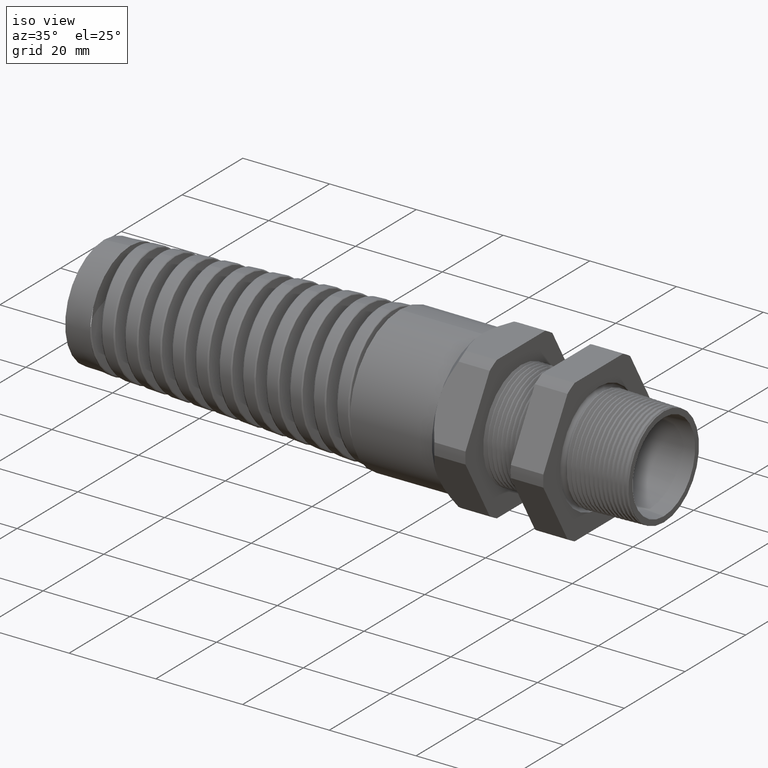
[diagram: clean part render]
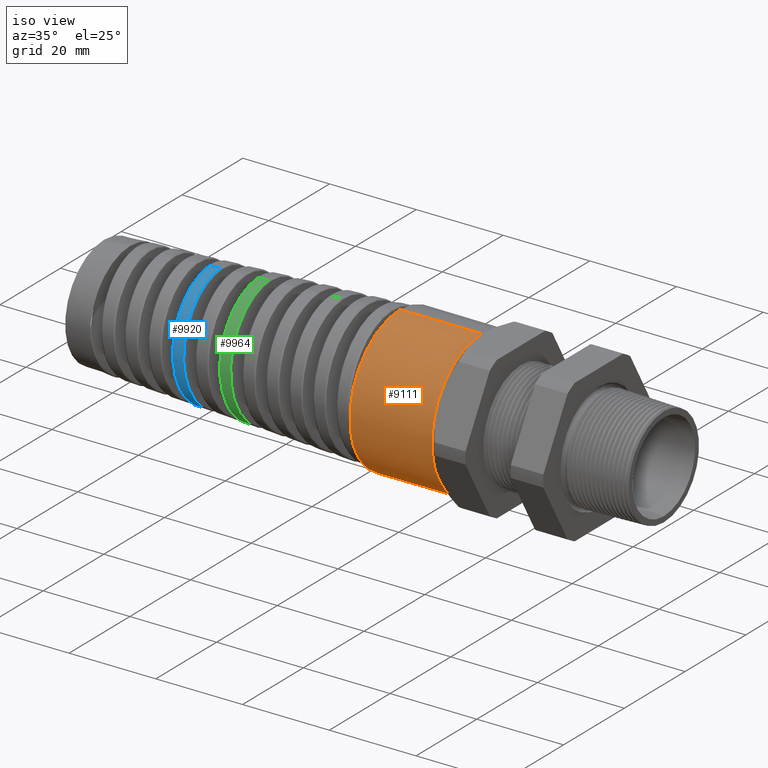
[diagram: same view with three faces highlighted in distinct colors, each labeled with its STEP entity id]
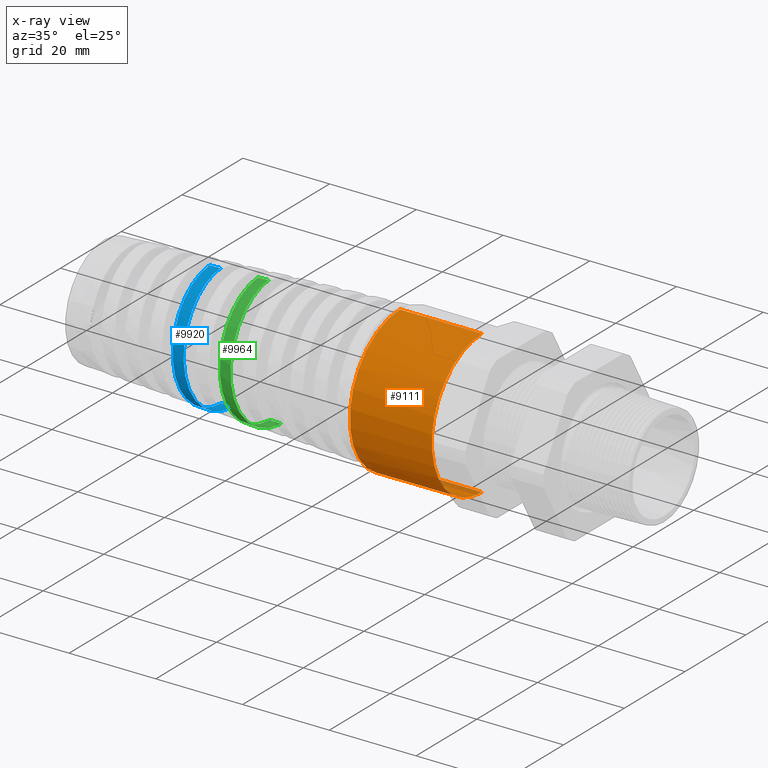
[diagram: x-ray of the same camera — body ghosted, the three highlighted faces saturated]
A machine part, iso view with three faces highlighted in distinct colors.
The next image is the same camera in x-ray (body ghosted, the three faces saturated) — at least one of them is partly hidden behind the body in this view.
Their STEP definitions:

[orange] entity #9111 — the highlighted cylindrical surface (partial cylindrical patch) has radius 16.51 mm, axis along (1, 0, 0).
#8967 = VERTEX_POINT ( 'NONE', #12542 ) ;
#8999 = VERTEX_POINT ( 'NONE', #12596 ) ;
#9093 = ORIENTED_EDGE ( 'NONE', *, *, #9094, .F. ) ;
#9094 = EDGE_CURVE ( 'NONE', #8999, #8967, #12826, .T. ) ;
#9095 = ORIENTED_EDGE ( 'NONE', *, *, #9096, .F. ) ;
#9096 = EDGE_CURVE ( 'NONE', #10481, #8999, #12821, .T. ) ;
#9111 = ADVANCED_FACE ( 'NONE', ( #12858 ), #12857, .T. ) ;
#9112 = EDGE_LOOP ( 'NONE', ( #9113, #9114, #9116, #9117, #9093, #9095 ) ) ;
#9113 = ORIENTED_EDGE ( 'NONE', *, *, #10480, .F. ) ;
#9114 = ORIENTED_EDGE ( 'NONE', *, *, #9115, .F. ) ;
#9115 = EDGE_CURVE ( 'NONE', #10478, #10477, #12851, .T. ) ;
#9116 = ORIENTED_EDGE ( 'NONE', *, *, #10463, .T. ) ;
#9117 = ORIENTED_EDGE ( 'NONE', *, *, #9118, .F. ) ;
#9118 = EDGE_CURVE ( 'NONE', #8967, #10461, #12847, .T. ) ;
#10461 = VERTEX_POINT ( 'NONE', #20010 ) ;
#10463 = EDGE_CURVE ( 'NONE', #10478, #10461, #20080, .T. ) ;
#10477 = VERTEX_POINT ( 'NONE', #20048 ) ;
#10478 = VERTEX_POINT ( 'NONE', #20047 ) ;
#10480 = EDGE_CURVE ( 'NONE', #10477, #10481, #19700, .T. ) ;
#10481 = VERTEX_POINT ( 'NONE', #20109 ) ;
#12542 = CARTESIAN_POINT ( 'NONE',  ( -1.370551181102362300, -0.5629165124598851700, -0.3250000000000002300 ) ) ;
#12596 = CARTESIAN_POINT ( 'NONE',  ( -1.370551181102362300, -0.5629165124598853900, 0.3249999999999999600 ) ) ;
#12817 = DIRECTION ( 'NONE',  ( 0.0000000000000000000, 0.0000000000000000000, -1.000000000000000000 ) ) ;
#12818 = DIRECTION ( 'NONE',  ( 1.000000000000000000, 0.0000000000000000000, 0.0000000000000000000 ) ) ;
#12819 = CARTESIAN_POINT ( 'NONE',  ( -1.370551181102362500, 0.0000000000000000000, 0.0000000000000000000 ) ) ;
#12820 = AXIS2_PLACEMENT_3D ( 'NONE', #12819, #12818, #12817 ) ;
#12821 = CIRCLE ( 'NONE', #12820, 0.6500000000000000200 ) ;
#12822 = DIRECTION ( 'NONE',  ( 0.0000000000000000000, 0.0000000000000000000, -1.000000000000000000 ) ) ;
#12823 = DIRECTION ( 'NONE',  ( 1.000000000000000000, 0.0000000000000000000, 0.0000000000000000000 ) ) ;
#12824 = CARTESIAN_POINT ( 'NONE',  ( -1.370551181102362500, 0.0000000000000000000, 0.0000000000000000000 ) ) ;
#12825 = AXIS2_PLACEMENT_3D ( 'NONE', #12824, #12823, #12822 ) ;
#12826 = CIRCLE ( 'NONE', #12825, 0.6500000000000000200 ) ;
#12843 = DIRECTION ( 'NONE',  ( 0.0000000000000000000, 0.0000000000000000000, -1.000000000000000000 ) ) ;
#12844 = DIRECTION ( 'NONE',  ( 1.000000000000000000, 0.0000000000000000000, 0.0000000000000000000 ) ) ;
#12845 = CARTESIAN_POINT ( 'NONE',  ( -1.370551181102362500, 0.0000000000000000000, 0.0000000000000000000 ) ) ;
#12846 = AXIS2_PLACEMENT_3D ( 'NONE', #12845, #12844, #12843 ) ;
#12847 = CIRCLE ( 'NONE', #12846, 0.6500000000000000200 ) ;
#12848 = DIRECTION ( 'NONE',  ( 0.0000000000000000000, 0.0000000000000000000, 1.000000000000000000 ) ) ;
#12849 = DIRECTION ( 'NONE',  ( -1.000000000000000000, 0.0000000000000000000, 0.0000000000000000000 ) ) ;
#12850 = AXIS2_PLACEMENT_3D ( 'NONE', #12856, #12849, #12848 ) ;
#12851 = CIRCLE ( 'NONE', #12850, 0.6500000000000000200 ) ;
#12852 = DIRECTION ( 'NONE',  ( 0.0000000000000000000, 0.0000000000000000000, -1.000000000000000000 ) ) ;
#12853 = DIRECTION ( 'NONE',  ( 1.000000000000000000, 0.0000000000000000000, 0.0000000000000000000 ) ) ;
#12854 = CARTESIAN_POINT ( 'NONE',  ( 1.326736918405036800, 0.0000000000000000000, 0.0000000000000000000 ) ) ;
#12855 = AXIS2_PLACEMENT_3D ( 'NONE', #12854, #12853, #12852 ) ;
#12856 = CARTESIAN_POINT ( 'NONE',  ( -2.115199598098571600, 0.0000000000000000000, 0.0000000000000000000 ) ) ;
#12857 = CYLINDRICAL_SURFACE ( 'NONE', #12855, 0.6500000000000000200 ) ;
#12858 = FACE_OUTER_BOUND ( 'NONE', #9112, .T. ) ;
#19700 = LINE ( 'NONE', #19702, #19737 ) ;
#19701 = DIRECTION ( 'NONE',  ( 1.000000000000000000, 0.0000000000000000000, 0.0000000000000000000 ) ) ;
#19702 = CARTESIAN_POINT ( 'NONE',  ( 1.326736918405036800, 7.960204194457796700E-017, 0.6500000000000000200 ) ) ;
#19737 = VECTOR ( 'NONE', #19701, 39.37007874015748100 ) ;
#20010 = CARTESIAN_POINT ( 'NONE',  ( -1.370551181102362300, 0.0000000000000000000, -0.6500000000000000200 ) ) ;
#20047 = CARTESIAN_POINT ( 'NONE',  ( -2.115199598098571600, 0.0000000000000000000, -0.6500000000000000200 ) ) ;
#20048 = CARTESIAN_POINT ( 'NONE',  ( -2.115199598098571600, 7.960204194457796700E-017, 0.6500000000000000200 ) ) ;
#20077 = DIRECTION ( 'NONE',  ( 1.000000000000000000, 0.0000000000000000000, 0.0000000000000000000 ) ) ;
#20078 = VECTOR ( 'NONE', #20077, 39.37007874015748100 ) ;
#20079 = CARTESIAN_POINT ( 'NONE',  ( 1.326736918405036800, 0.0000000000000000000, -0.6500000000000000200 ) ) ;
#20080 = LINE ( 'NONE', #20079, #20078 ) ;
#20109 = CARTESIAN_POINT ( 'NONE',  ( -1.370551181102362300, 0.0000000000000000000, 0.6500000000000000200 ) ) ;

[blue] entity #9920 — the highlighted conical surface has half-angle 2.5 deg.
#9863 = VERTEX_POINT ( 'NONE', #15163 ) ;
#9865 = EDGE_CURVE ( 'NONE', #9873, #9863, #15182, .T. ) ;
#9873 = VERTEX_POINT ( 'NONE', #15323 ) ;
#9920 = ADVANCED_FACE ( 'NONE', ( #15638 ), #15637, .T. ) ;
#9921 = EDGE_LOOP ( 'NONE', ( #9975, #9976, #9978, #9979 ) ) ;
#9975 = ORIENTED_EDGE ( 'NONE', *, *, #10277, .F. ) ;
#9976 = ORIENTED_EDGE ( 'NONE', *, *, #9977, .T. ) ;
#9977 = EDGE_CURVE ( 'NONE', #10275, #9873, #16307, .T. ) ;
#9978 = ORIENTED_EDGE ( 'NONE', *, *, #9865, .T. ) ;
#9979 = ORIENTED_EDGE ( 'NONE', *, *, #9980, .T. ) ;
#9980 = EDGE_CURVE ( 'NONE', #9863, #10278, #16335, .T. ) ;
#10275 = VERTEX_POINT ( 'NONE', #18535 ) ;
#10277 = EDGE_CURVE ( 'NONE', #10275, #10278, #18565, .T. ) ;
#10278 = VERTEX_POINT ( 'NONE', #18561 ) ;
#15163 = CARTESIAN_POINT ( 'NONE',  ( -3.633327764359772800, 6.087798419230420300E-013, -0.5581667265623990700 ) ) ;
#15179 = DIRECTION ( 'NONE',  ( 0.9990482215818576900, 0.0000000000000000000, -0.04361938736533626400 ) ) ;
#15180 = VECTOR ( 'NONE', #15179, 39.37007874015748100 ) ;
#15181 = CARTESIAN_POINT ( 'NONE',  ( -1.530000000000000200, 0.0000000000000000000, -0.6499999999999999100 ) ) ;
#15182 = LINE ( 'NONE', #15181, #15180 ) ;
#15323 = CARTESIAN_POINT ( 'NONE',  ( -3.735428313506644400, 1.418457782674449500E-015, -0.5537089203151697200 ) ) ;
#15633 = DIRECTION ( 'NONE',  ( 0.0000000000000000000, 0.0000000000000000000, -1.000000000000000000 ) ) ;
#15634 = DIRECTION ( 'NONE',  ( 1.000000000000000000, 0.0000000000000000000, 0.0000000000000000000 ) ) ;
#15635 = CARTESIAN_POINT ( 'NONE',  ( -1.530000000000000200, 0.0000000000000000000, 0.0000000000000000000 ) ) ;
#15636 = AXIS2_PLACEMENT_3D ( 'NONE', #15635, #15634, #15633 ) ;
#15637 = CONICAL_SURFACE ( 'NONE', #15636, 0.6499999999999999100, 0.04363323129985850100 ) ;
#15638 = FACE_OUTER_BOUND ( 'NONE', #9921, .T. ) ;
#16270 = CARTESIAN_POINT ( 'NONE',  ( -3.764036795854600400, -0.4024263849458568600, -0.3789361264680287100 ) ) ;
#16271 = CARTESIAN_POINT ( 'NONE',  ( -3.765194703821552300, -0.4147014891979020600, -0.3653836614453784300 ) ) ;
#16272 = CARTESIAN_POINT ( 'NONE',  ( -3.767485444692920900, -0.4376163782456989300, -0.3374373441936567300 ) ) ;
#16273 = CARTESIAN_POINT ( 'NONE',  ( -3.769763016962471200, -0.4590376492593963300, -0.3085225432027531300 ) ) ;
#16274 = CARTESIAN_POINT ( 'NONE',  ( -3.772040190895699800, -0.4775243498012218300, -0.2777068590145662100 ) ) ;
#16275 = CARTESIAN_POINT ( 'NONE',  ( -3.774329056577157000, -0.4945280431953412200, -0.2459314527179717300 ) ) ;
#16276 = CARTESIAN_POINT ( 'NONE',  ( -3.775483433498811900, -0.5023128376051977400, -0.2295040739212871100 ) ) ;
#16277 = CARTESIAN_POINT ( 'NONE',  ( -3.778953284140863700, -0.5231892313861040700, -0.1791291744344067300 ) ) ;
#16278 = CARTESIAN_POINT ( 'NONE',  ( -3.781235507285941400, -0.5336075231294501500, -0.1446985072618499300 ) ) ;
#16279 = CARTESIAN_POINT ( 'NONE',  ( -3.784661442643932000, -0.5441586356411498600, -0.09182633774336593200 ) ) ;
#16280 = CARTESIAN_POINT ( 'NONE',  ( -3.785804430105721000, -0.5468234349474184700, -0.07399646367209976300 ) ) ;
#16281 = CARTESIAN_POINT ( 'NONE',  ( -3.788106044755043600, -0.5504025579393880800, -0.03791486320502088200 ) ) ;
#16282 = CARTESIAN_POINT ( 'NONE',  ( -3.789263852555224200, -0.5513027336990418100, -0.01967600818574817900 ) ) ;
#16283 = CARTESIAN_POINT ( 'NONE',  ( -3.792703794437092000, -0.5513123662501979700, 0.03447011000485808400 ) ) ;
#16284 = CARTESIAN_POINT ( 'NONE',  ( -3.794979030589221900, -0.5478069671709883100, 0.07021382053498247100 ) ) ;
#16285 = CARTESIAN_POINT ( 'NONE',  ( -3.798429191220353800, -0.5372881831996158000, 0.1232954069569988100 ) ) ;
#16286 = CARTESIAN_POINT ( 'NONE',  ( -3.799591373271051800, -0.5328694342381539200, 0.1409909971055118600 ) ) ;
#16287 = CARTESIAN_POINT ( 'NONE',  ( -3.801904806971079700, -0.5223407107693454100, 0.1757190843129290100 ) ) ;
#16288 = CARTESIAN_POINT ( 'NONE',  ( -3.803051795439746900, -0.5162580999316783700, 0.1927001412097222600 ) ) ;
#16289 = CARTESIAN_POINT ( 'NONE',  ( -3.806481983892926500, -0.4956228874993334800, 0.2425246400725568400 ) ) ;
#16290 = CARTESIAN_POINT ( 'NONE',  ( -3.808755582773154300, -0.4787057518779014300, 0.2742600395190887300 ) ) ;
#16291 = CARTESIAN_POINT ( 'NONE',  ( -3.812224320051305500, -0.4484404838484493700, 0.3195663214175089600 ) ) ;
#16292 = CARTESIAN_POINT ( 'NONE',  ( -3.813383341598325100, -0.4375848799510591000, 0.3341862064976713900 ) ) ;
#16293 = CARTESIAN_POINT ( 'NONE',  ( -3.815683317109347600, -0.4146971073405975600, 0.3620452246488193300 ) ) ;
#16294 = CARTESIAN_POINT ( 'NONE',  ( -3.817975677220209400, -0.3905426642978325800, 0.3886613290339711000 ) ) ;
#16295 = CARTESIAN_POINT ( 'NONE',  ( -3.820271393623977400, -0.3638843709181285900, 0.4128188893686289300 ) ) ;
#16296 = CARTESIAN_POINT ( 'NONE',  ( -3.822576177442744700, -0.3359525047388657900, 0.4357252605044272800 ) ) ;
#16297 = CARTESIAN_POINT ( 'NONE',  ( -3.823739192518372100, -0.3212637131273469700, 0.4466051974987062000 ) ) ;
#16298 = CARTESIAN_POINT ( 'NONE',  ( -3.827199522645225100, -0.2760491704612608200, 0.4767404581132898000 ) ) ;
#16299 = CARTESIAN_POINT ( 'NONE',  ( -3.829475818732324100, -0.2443269419111491800, 0.4936222015291773500 ) ) ;
#16300 = CARTESIAN_POINT ( 'NONE',  ( -3.832920405164802300, -0.1944230078828167500, 0.5142192103555358600 ) ) ;
#16301 = CARTESIAN_POINT ( 'NONE',  ( -3.834073448236635900, -0.1773988464125280900, 0.5202917063925642800 ) ) ;
#16302 = CARTESIAN_POINT ( 'NONE',  ( -3.836400500195660700, -0.1425449844084268900, 0.5307947892549952400 ) ) ;
#16303 = CARTESIAN_POINT ( 'NONE',  ( -3.837558588607058700, -0.1249539384397218300, 0.5351505802367502200 ) ) ;
#16304 = CARTESIAN_POINT ( 'NONE',  ( -3.841014447858788600, -0.07194276508153774100, 0.5455556362618976300 ) ) ;
#16305 = CARTESIAN_POINT ( 'NONE',  ( -3.843296409137881800, -0.03618260755344817500, 0.5489992975502333600 ) ) ;
#16306 = CARTESIAN_POINT ( 'NONE',  ( -3.845603945865612600, 1.046813861233969200E-012, 0.5488985483208355100 ) ) ;
#16307 = B_SPLINE_CURVE_WITH_KNOTS ( 'NONE', 3,
 ( #16306, #16305, #16304, #16303, #16302, #16301, #16300, #16299, #16298, #16297, #16296, #16295, #16294, #16293, #16292, #16291, #16290, #16289, #16288, #16287, #16286, #16285, #16284, #16283, #16282, #16281, #16280, #16279, #16278, #16277, #16276, #16275, #16274, #16273, #16272, #16271, #16270, #16349, #16348, #16347, #16346, #16345, #16344, #16343, #16342, #16341, #16340, #16339, #16338, #16337 ),
 .UNSPECIFIED., .F., .F.,
 ( 4, 2, 2, 2, 2, 2, 1, 2, 2, 2, 2, 2, 2, 2, 2, 2, 2, 1, 2, 2, 2, 2, 2, 2, 2, 4 ),
 ( 0.2797453626345087200, 0.2825184206380514400, 0.2839049496398227700, 0.2852914786415941500, 0.2880645366451368700, 0.2894510656469082000, 0.2908375946486795300, 0.2922241236504509200, 0.2936106526522222500, 0.2963837106557649600, 0.2977702396575363500, 0.2991567686593076800, 0.3019298266628504000, 0.3033163556646217300, 0.3047028846663931100, 0.3074759426699358300, 0.3088624716717071600, 0.3102490006734785500, 0.3116355296752498800, 0.3130220586770212100, 0.3157951166805639300, 0.3171816456823352600, 0.3185681746841066400, 0.3213412326876493600, 0.3227277616894206900, 0.3241142906911920200 ),
 .UNSPECIFIED. ) ;
#16308 = CARTESIAN_POINT ( 'NONE',  ( -3.692711163062788200, -0.5513461426773915700, 0.07080449757934972900 ) ) ;
#16309 = CARTESIAN_POINT ( 'NONE',  ( -3.690409653241417200, -0.5549053835708807100, 0.03446050230631288900 ) ) ;
#16310 = CARTESIAN_POINT ( 'NONE',  ( -3.689249078842896900, -0.5557915578136007900, 0.01605426284739716300 ) ) ;
#16311 = CARTESIAN_POINT ( 'NONE',  ( -3.685806854939667400, -0.5557300957758010100, -0.03857174860767322700 ) ) ;
#16312 = CARTESIAN_POINT ( 'NONE',  ( -3.683543483175992300, -0.5521438475557477500, -0.07460258229145549900 ) ) ;
#16313 = CARTESIAN_POINT ( 'NONE',  ( -3.680122123952315900, -0.5414815590907430300, -0.1280682381592736200 ) ) ;
#16314 = CARTESIAN_POINT ( 'NONE',  ( -3.678971958072782700, -0.5370166941760363700, -0.1458689721701345900 ) ) ;
#16315 = CARTESIAN_POINT ( 'NONE',  ( -3.676672481442142100, -0.5263546069961062600, -0.1809066095160112300 ) ) ;
#16316 = CARTESIAN_POINT ( 'NONE',  ( -3.675530610907831200, -0.5202005849234350200, -0.1980315979040673000 ) ) ;
#16317 = CARTESIAN_POINT ( 'NONE',  ( -3.672111073953048300, -0.4993440242737360900, -0.2482595172045053100 ) ) ;
#16318 = CARTESIAN_POINT ( 'NONE',  ( -3.669838754237521700, -0.4822696765447651600, -0.2802262223207864800 ) ) ;
#16319 = CARTESIAN_POINT ( 'NONE',  ( -3.666389087920400900, -0.4517809053363715500, -0.3258361558729678800 ) ) ;
#16320 = CARTESIAN_POINT ( 'NONE',  ( -3.665235948156913400, -0.4408138889730579500, -0.3406034911913022900 ) ) ;
#16321 = CARTESIAN_POINT ( 'NONE',  ( -3.662955058546250700, -0.4177219486382371900, -0.3687097773890910000 ) ) ;
#16322 = CARTESIAN_POINT ( 'NONE',  ( -3.660686853602290700, -0.3933653138135835300, -0.3955544738158771600 ) ) ;
#16323 = CARTESIAN_POINT ( 'NONE',  ( -3.658417803427549000, -0.3665164188884788000, -0.4199107275566868500 ) ) ;
#16324 = CARTESIAN_POINT ( 'NONE',  ( -3.656136156542610900, -0.3384041400655156700, -0.4430044491269428100 ) ) ;
#16325 = CARTESIAN_POINT ( 'NONE',  ( -3.654982715111794600, -0.3236313733059101300, -0.4539741429703179100 ) ) ;
#16326 = CARTESIAN_POINT ( 'NONE',  ( -3.651537853184426000, -0.2780326645871235600, -0.4844564626574354200 ) ) ;
#16327 = CARTESIAN_POINT ( 'NONE',  ( -3.649268545211066700, -0.2460712398872702000, -0.5015349439735192800 ) ) ;
#16328 = CARTESIAN_POINT ( 'NONE',  ( -3.645857128704463400, -0.1958476676417998900, -0.5224098819246656400 ) ) ;
#16329 = CARTESIAN_POINT ( 'NONE',  ( -3.644719014755906100, -0.1787235091104260000, -0.5285720983982885600 ) ) ;
#16330 = CARTESIAN_POINT ( 'NONE',  ( -3.642426707779665500, -0.1436866747293286100, -0.5392553507532438200 ) ) ;
#16331 = CARTESIAN_POINT ( 'NONE',  ( -3.641280547147175600, -0.1258945910570941900, -0.5437309458471876200 ) ) ;
#16332 = CARTESIAN_POINT ( 'NONE',  ( -3.637869510012808700, -0.07244248733184097100, -0.5544381226043096900 ) ) ;
#16333 = CARTESIAN_POINT ( 'NONE',  ( -3.635612245094285400, -0.03641655398244927200, -0.5580669839795138200 ) ) ;
#16334 = CARTESIAN_POINT ( 'NONE',  ( -3.633327764359772800, 6.087798419230420300E-013, -0.5581667265623990700 ) ) ;
#16335 = B_SPLINE_CURVE_WITH_KNOTS ( 'NONE', 3,
 ( #16334, #16333, #16332, #16331, #16330, #16329, #16328, #16327, #16326, #16325, #16324, #16323, #16322, #16321, #16320, #16319, #16318, #16317, #16316, #16315, #16314, #16313, #16312, #16311, #16310, #16309, #16308, #16385, #16384, #16383, #16382, #16381, #16380, #16379, #16378, #16377, #16376, #16375, #16374, #16373, #16372, #16371, #16370, #16369, #16368, #16367, #16366, #16365, #16364 ),
 .UNSPECIFIED., .F., .F.,
 ( 4, 2, 2, 2, 2, 2, 1, 2, 2, 2, 2, 2, 2, 2, 2, 2, 2, 2, 2, 2, 2, 2, 2, 2, 4 ),
 ( 0.6544047487912670900, 0.6572056569766503400, 0.6586061110693419700, 0.6600065651620337100, 0.6628074733474169600, 0.6642079274401085900, 0.6656083815328002200, 0.6670088356254918500, 0.6684092897181834700, 0.6712101979035668400, 0.6726106519962584700, 0.6740111060889501000, 0.6768120142743333500, 0.6782124683670249800, 0.6796129224597166100, 0.6824138306450999700, 0.6852147388304832300, 0.6866151929231748600, 0.6880156470158664800, 0.6908165552012497400, 0.6922170092939413700, 0.6936174633866331000, 0.6964183715720163600, 0.6978188256647079900, 0.6992192797573996100 ),
 .UNSPECIFIED. ) ;
#16337 = CARTESIAN_POINT ( 'NONE',  ( -3.735428313506644400, 1.418457782674449500E-015, -0.5537089203151697200 ) ) ;
#16338 = CARTESIAN_POINT ( 'NONE',  ( -3.736566388436113800, -0.01796019790949942100, -0.5536592308906482800 ) ) ;
#16339 = CARTESIAN_POINT ( 'NONE',  ( -3.737706747492669300, -0.03593526832335221900, -0.5527377193069900100 ) ) ;
#16340 = CARTESIAN_POINT ( 'NONE',  ( -3.740001855236662700, -0.07191514506518254000, -0.5491152895351186800 ) ) ;
#16341 = CARTESIAN_POINT ( 'NONE',  ( -3.741161866676281400, -0.09000024012832004400, -0.5463914560888129000 ) ) ;
#16342 = CARTESIAN_POINT ( 'NONE',  ( -3.744605230060731800, -0.1432034684228009100, -0.5356788356679920100 ) ) ;
#16343 = CARTESIAN_POINT ( 'NONE',  ( -3.746866507668958200, -0.1775589641770421700, -0.5251764556753434300 ) ) ;
#16344 = CARTESIAN_POINT ( 'NONE',  ( -3.750285101356109200, -0.2274399413533692000, -0.5044510920306141100 ) ) ;
#16345 = CARTESIAN_POINT ( 'NONE',  ( -3.751430035436785500, -0.2438030288132126100, -0.4967010584334168900 ) ) ;
#16346 = CARTESIAN_POINT ( 'NONE',  ( -3.753737813332528500, -0.2758987326567299300, -0.4795000682119835400 ) ) ;
#16347 = CARTESIAN_POINT ( 'NONE',  ( -3.754883375701698200, -0.2913906433964887900, -0.4701798131660440100 ) ) ;
#16348 = CARTESIAN_POINT ( 'NONE',  ( -3.758312158273860800, -0.3362539211171550200, -0.4401331473809266800 ) ) ;
#16349 = CARTESIAN_POINT ( 'NONE',  ( -3.760588281698384000, -0.3640277599823666400, -0.4173402216586837300 ) ) ;
#16364 = CARTESIAN_POINT ( 'NONE',  ( -3.743151543843841600, 2.292153263157246400E-015, 0.5533717167963480000 ) ) ;
#16365 = CARTESIAN_POINT ( 'NONE',  ( -3.742008642997511900, -0.01810389563496027000, 0.5534216169249499600 ) ) ;
#16366 = CARTESIAN_POINT ( 'NONE',  ( -3.740866779689641300, -0.03621560674647774500, 0.5525852155201020900 ) ) ;
#16367 = CARTESIAN_POINT ( 'NONE',  ( -3.738571622500317800, -0.07245405102762531000, 0.5491114062356825500 ) ) ;
#16368 = CARTESIAN_POINT ( 'NONE',  ( -3.737411816088019600, -0.09068161187769106800, 0.5464505606204102000 ) ) ;
#16369 = CARTESIAN_POINT ( 'NONE',  ( -3.733955020068846500, -0.1444488209819628800, 0.5358489883879730100 ) ) ;
#16370 = CARTESIAN_POINT ( 'NONE',  ( -3.731677089651719300, -0.1791277434757102300, 0.5253610386341027700 ) ) ;
#16371 = CARTESIAN_POINT ( 'NONE',  ( -3.728236398516879400, -0.2294311718262263300, 0.5046104832535189800 ) ) ;
#16372 = CARTESIAN_POINT ( 'NONE',  ( -3.727085798178555000, -0.2459111291882006800, 0.4968512064638875300 ) ) ;
#16373 = CARTESIAN_POINT ( 'NONE',  ( -3.724769039356788300, -0.2782756323643176300, 0.4795916789992477100 ) ) ;
#16374 = CARTESIAN_POINT ( 'NONE',  ( -3.723617164500658800, -0.2939670875308116300, 0.4701893158244172000 ) ) ;
#16375 = CARTESIAN_POINT ( 'NONE',  ( -3.720185820380879100, -0.3392706805673315100, 0.4399378518888867300 ) ) ;
#16376 = CARTESIAN_POINT ( 'NONE',  ( -3.717918975505586600, -0.3672811792591926800, 0.4169827972466108000 ) ) ;
#16377 = CARTESIAN_POINT ( 'NONE',  ( -3.714473035726497200, -0.4059681819375802200, 0.3783249801736525700 ) ) ;
#16378 = CARTESIAN_POINT ( 'NONE',  ( -3.713311738596676700, -0.4183511848860411700, 0.3646623831811695000 ) ) ;
#16379 = CARTESIAN_POINT ( 'NONE',  ( -3.711010517546821300, -0.4414763409827764400, 0.3364617039368020300 ) ) ;
#16380 = CARTESIAN_POINT ( 'NONE',  ( -3.709865924125045600, -0.4522767765322474000, 0.3218763454530627600 ) ) ;
#16381 = CARTESIAN_POINT ( 'NONE',  ( -3.706436452743096000, -0.4824391814666059200, 0.2766964617666766700 ) ) ;
#16382 = CARTESIAN_POINT ( 'NONE',  ( -3.704155922103531000, -0.4996089727289549900, 0.2446319580930432500 ) ) ;
#16383 = CARTESIAN_POINT ( 'NONE',  ( -3.699542367209953200, -0.5276503744843951100, 0.1768125082141040500 ) ) ;
#16384 = CARTESIAN_POINT ( 'NONE',  ( -3.697274099646796300, -0.5381158535068367700, 0.1420731373702002200 ) ) ;
#16385 = CARTESIAN_POINT ( 'NONE',  ( -3.693853939705871200, -0.5486844882143828700, 0.08877180202762866000 ) ) ;
#18535 = CARTESIAN_POINT ( 'NONE',  ( -3.845603945865612600, 1.046813861233969200E-012, 0.5488985483208355100 ) ) ;
#18561 = CARTESIAN_POINT ( 'NONE',  ( -3.743151543843841600, 2.292153263157246400E-015, 0.5533717167963480000 ) ) ;
#18562 = DIRECTION ( 'NONE',  ( 0.9990482215818576900, 5.341834311772755600E-018, 0.04361938736533626400 ) ) ;
#18563 = VECTOR ( 'NONE', #18562, 39.37007874015748100 ) ;
#18564 = CARTESIAN_POINT ( 'NONE',  ( -1.530000000000000200, 7.960204194457794200E-017, 0.6499999999999999100 ) ) ;
#18565 = LINE ( 'NONE', #18564, #18563 ) ;

[green] entity #9964 — the highlighted conical surface has half-angle 2.5 deg.
#9844 = VERTEX_POINT ( 'NONE', #15041 ) ;
#9846 = EDGE_CURVE ( 'NONE', #9844, #9847, #15040, .T. ) ;
#9847 = VERTEX_POINT ( 'NONE', #15036 ) ;
#9857 = VERTEX_POINT ( 'NONE', #15134 ) ;
#9917 = VERTEX_POINT ( 'NONE', #15643 ) ;
#9919 = EDGE_CURVE ( 'NONE', #9857, #9917, #15642, .T. ) ;
#9964 = ADVANCED_FACE ( 'NONE', ( #16134 ), #16132, .T. ) ;
#9965 = EDGE_LOOP ( 'NONE', ( #9966, #9967, #9969, #9970 ) ) ;
#9966 = ORIENTED_EDGE ( 'NONE', *, *, #9846, .F. ) ;
#9967 = ORIENTED_EDGE ( 'NONE', *, *, #9968, .T. ) ;
#9968 = EDGE_CURVE ( 'NONE', #9844, #9857, #16158, .T. ) ;
#9969 = ORIENTED_EDGE ( 'NONE', *, *, #9919, .T. ) ;
#9970 = ORIENTED_EDGE ( 'NONE', *, *, #9971, .T. ) ;
#9971 = EDGE_CURVE ( 'NONE', #9917, #9847, #16185, .T. ) ;
#15036 = CARTESIAN_POINT ( 'NONE',  ( -3.303831899933475500, 3.512581403353681900E-016, 0.5725528266877064600 ) ) ;
#15037 = DIRECTION ( 'NONE',  ( 0.9990482215818576900, 5.341834311772755600E-018, 0.04361938736533626400 ) ) ;
#15038 = VECTOR ( 'NONE', #15037, 39.37007874015748100 ) ;
#15039 = CARTESIAN_POINT ( 'NONE',  ( -1.530000000000000200, 7.960204194457794200E-017, 0.6499999999999999100 ) ) ;
#15040 = LINE ( 'NONE', #15039, #15038 ) ;
#15041 = CARTESIAN_POINT ( 'NONE',  ( -3.404924743614887700, 6.227076600169196600E-013, 0.5681390178112731800 ) ) ;
#15134 = CARTESIAN_POINT ( 'NONE',  ( -3.294765793735067800, 3.237012489142617100E-015, -0.5729486614328376200 ) ) ;
#15639 = DIRECTION ( 'NONE',  ( 0.9990482215818576900, 0.0000000000000000000, -0.04361938736533626400 ) ) ;
#15640 = VECTOR ( 'NONE', #15639, 39.37007874015748100 ) ;
#15641 = CARTESIAN_POINT ( 'NONE',  ( -1.530000000000000200, 0.0000000000000000000, -0.6499999999999999100 ) ) ;
#15642 = LINE ( 'NONE', #15641, #15640 ) ;
#15643 = CARTESIAN_POINT ( 'NONE',  ( -3.193992204935517600, 2.317044770717647200E-016, -0.5773485313401007800 ) ) ;
#16132 = CONICAL_SURFACE ( 'NONE', #16162, 0.6499999999999999100, 0.04363323129985850100 ) ;
#16134 = FACE_OUTER_BOUND ( 'NONE', #9965, .T. ) ;
#16144 = CARTESIAN_POINT ( 'NONE',  ( -3.376165766005204500, -0.4166217232325053500, 0.3885657145896043200 ) ) ;
#16145 = CARTESIAN_POINT ( 'NONE',  ( -3.379600015432867800, -0.3771017340666844600, 0.4280427641914268900 ) ) ;
#16146 = CARTESIAN_POINT ( 'NONE',  ( -3.381878012048061600, -0.3483525346193888600, 0.4516461147990590300 ) ) ;
#16147 = CARTESIAN_POINT ( 'NONE',  ( -3.385349294161800000, -0.3015456910383803600, 0.4828828749802424000 ) ) ;
#16148 = CARTESIAN_POINT ( 'NONE',  ( -3.386515417686044100, -0.2853171965138623900, 0.4925840905037753800 ) ) ;
#16149 = CARTESIAN_POINT ( 'NONE',  ( -3.388823542523978500, -0.2523367683471239900, 0.5101533926449632900 ) ) ;
#16150 = CARTESIAN_POINT ( 'NONE',  ( -3.389972072196216800, -0.2354982285563161600, 0.5180832033544567900 ) ) ;
#16151 = CARTESIAN_POINT ( 'NONE',  ( -3.392265366047617200, -0.2011357063750846800, 0.5322594814827948900 ) ) ;
#16152 = CARTESIAN_POINT ( 'NONE',  ( -3.393409860817984100, -0.1836117063388426300, 0.5385059498308262200 ) ) ;
#16153 = CARTESIAN_POINT ( 'NONE',  ( -3.395708695371047400, -0.1478698119521200400, 0.5492925424221540800 ) ) ;
#16154 = CARTESIAN_POINT ( 'NONE',  ( -3.396868953983364300, -0.1295559150545920200, 0.5538499645734571400 ) ) ;
#16155 = CARTESIAN_POINT ( 'NONE',  ( -3.400339529643474600, -0.07426496322027378900, 0.5647170602027920000 ) ) ;
#16156 = CARTESIAN_POINT ( 'NONE',  ( -3.402623886964605000, -0.03722052731169495800, 0.5682394753821629100 ) ) ;
#16157 = CARTESIAN_POINT ( 'NONE',  ( -3.404924743614887700, 6.227076600169196600E-013, 0.5681390178112731800 ) ) ;
#16158 = B_SPLINE_CURVE_WITH_KNOTS ( 'NONE', 3,
 ( #16157, #16156, #16155, #16154, #16153, #16152, #16151, #16150, #16149, #16148, #16147, #16146, #16145, #16144, #16221, #16220, #16219, #16218, #16217, #16216, #16215, #16214, #16213, #16212, #16211, #16210, #16209, #16208, #16207, #16206, #16205, #16204, #16203, #16202, #16201, #16200, #16199, #16198, #16197, #16196, #16195, #16194, #16193, #16192, #16191, #16190, #16189, #16188, #16187 ),
 .UNSPECIFIED., .F., .F.,
 ( 4, 2, 2, 2, 2, 2, 2, 2, 2, 2, 2, 2, 2, 2, 2, 2, 2, 2, 2, 2, 2, 1, 2, 2, 4 ),
 ( 0.4595469966570271400, 0.4624176207210565200, 0.4638529327530712100, 0.4652882447850859000, 0.4667235568171006500, 0.4681588688491153400, 0.4710294929131447200, 0.4724648049451594100, 0.4739001169771741000, 0.4767707410412034800, 0.4782060530732181700, 0.4796413651052328600, 0.4825119891692622500, 0.4853826132332916800, 0.4868179252653063200, 0.4882532372973210600, 0.4911238613613504400, 0.4925591733933651400, 0.4939944854253798300, 0.4968651094894092100, 0.4983004215214239000, 0.4997357335534385900, 0.5011710455854532200, 0.5026063576174679700, 0.5054769816814973500 ),
 .UNSPECIFIED. ) ;
#16159 = DIRECTION ( 'NONE',  ( 0.0000000000000000000, 0.0000000000000000000, -1.000000000000000000 ) ) ;
#16160 = DIRECTION ( 'NONE',  ( 1.000000000000000000, 0.0000000000000000000, 0.0000000000000000000 ) ) ;
#16161 = CARTESIAN_POINT ( 'NONE',  ( -1.530000000000000200, 0.0000000000000000000, 0.0000000000000000000 ) ) ;
#16162 = AXIS2_PLACEMENT_3D ( 'NONE', #16161, #16160, #16159 ) ;
#16180 = CARTESIAN_POINT ( 'NONE',  ( -3.199676670528690500, -0.09354863330063506500, -0.5697835999192827300 ) ) ;
#16181 = CARTESIAN_POINT ( 'NONE',  ( -3.198530107317532500, -0.07482918174496440400, -0.5725872143093476700 ) ) ;
#16182 = CARTESIAN_POINT ( 'NONE',  ( -3.196255676934050900, -0.03744369303717511000, -0.5763402906023922200 ) ) ;
#16183 = CARTESIAN_POINT ( 'NONE',  ( -3.195124326861542100, -0.01873135440165500300, -0.5772991018293233100 ) ) ;
#16184 = CARTESIAN_POINT ( 'NONE',  ( -3.193992204935517600, 2.317044770717647200E-016, -0.5773485313401007800 ) ) ;
#16185 = B_SPLINE_CURVE_WITH_KNOTS ( 'NONE', 3,
 ( #16184, #16183, #16182, #16181, #16180, #16269, #16268, #16267, #16266, #16265, #16264, #16263, #16262, #16261, #16260, #16259, #16258, #16257, #16256, #16255, #16254, #16253, #16252, #16251, #16250, #16249, #16248, #16247, #16246, #16245, #16244, #16243, #16242, #16241, #16240, #16239, #16238, #16237, #16236, #16235, #16234, #16233, #16232, #16231, #16230, #16229, #16228, #16227, #16226 ),
 .UNSPECIFIED., .F., .F.,
 ( 4, 2, 2, 2, 2, 2, 2, 2, 2, 2, 2, 1, 2, 2, 2, 2, 2, 2, 2, 2, 2, 2, 2, 2, 4 ),
 ( 0.4713105514898361900, 0.4727596624682617300, 0.4742087734466872700, 0.4771069954035382900, 0.4785561063819638300, 0.4800052173603893700, 0.4829034393172403900, 0.4843525502956659300, 0.4858016612740914700, 0.4886998832309424900, 0.4901489942093680300, 0.4915981051877935700, 0.4930472161662190500, 0.4944963271446445900, 0.4973945491014956600, 0.4988436600799212000, 0.5002927710583466900, 0.5031909930151977600, 0.5046401039936232500, 0.5060892149720488400, 0.5089874369288998100, 0.5118856588857508800, 0.5133347698641764800, 0.5147838808426019600, 0.5176821027994530400 ),
 .UNSPECIFIED. ) ;
#16187 = CARTESIAN_POINT ( 'NONE',  ( -3.294765793735067800, 3.237012489142617100E-015, -0.5729486614328376200 ) ) ;
#16188 = CARTESIAN_POINT ( 'NONE',  ( -3.297042169390556500, -0.03721755646004110800, -0.5728492727253052800 ) ) ;
#16189 = CARTESIAN_POINT ( 'NONE',  ( -3.299302934690427700, -0.07424431991764356100, -0.5691588081825049700 ) ) ;
#16190 = CARTESIAN_POINT ( 'NONE',  ( -3.302749034369693200, -0.1294852792708896800, -0.5580834460965886600 ) ) ;
#16191 = CARTESIAN_POINT ( 'NONE',  ( -3.303903212449935900, -0.1477863616867261500, -0.5534626291644481100 ) ) ;
#16192 = CARTESIAN_POINT ( 'NONE',  ( -3.306191503648907100, -0.1834977059221450900, -0.5425641775886173000 ) ) ;
#16193 = CARTESIAN_POINT ( 'NONE',  ( -3.308471737497523900, -0.2185118921833067400, -0.5299734764228091200 ) ) ;
#16194 = CARTESIAN_POINT ( 'NONE',  ( -3.310755047317984100, -0.2521490213563017900, -0.5140432396570178100 ) ) ;
#16195 = CARTESIAN_POINT ( 'NONE',  ( -3.313047591574243900, -0.2850866285692556000, -0.4964178149571513200 ) ) ;
#16196 = CARTESIAN_POINT ( 'NONE',  ( -3.314204158692042800, -0.3012913350014493900, -0.4866970751149641300 ) ) ;
#16197 = CARTESIAN_POINT ( 'NONE',  ( -3.317650871864211500, -0.3480775417051929500, -0.4553864291293366300 ) ) ;
#16198 = CARTESIAN_POINT ( 'NONE',  ( -3.319914997831511400, -0.3768102453061366600, -0.4317559491617142300 ) ) ;
#16199 = CARTESIAN_POINT ( 'NONE',  ( -3.323337713844747300, -0.4163045047094539600, -0.3922745338821314600 ) ) ;
#16200 = CARTESIAN_POINT ( 'NONE',  ( -3.324482866016269500, -0.4288642164979831800, -0.3784366781494513700 ) ) ;
#16201 = CARTESIAN_POINT ( 'NONE',  ( -3.326793115683922300, -0.4527345814897080200, -0.3493635959889933600 ) ) ;
#16202 = CARTESIAN_POINT ( 'NONE',  ( -3.327948904701377100, -0.4639423758038093700, -0.3342415922120174900 ) ) ;
#16203 = CARTESIAN_POINT ( 'NONE',  ( -3.331389657975853500, -0.4950272606246998200, -0.2877150508244910600 ) ) ;
#16204 = CARTESIAN_POINT ( 'NONE',  ( -3.333662202432120300, -0.5125723758514004700, -0.2549417408579675600 ) ) ;
#16205 = CARTESIAN_POINT ( 'NONE',  ( -3.337100905093493000, -0.5340818037245688200, -0.2031300614205606700 ) ) ;
#16206 = CARTESIAN_POINT ( 'NONE',  ( -3.338259103306174600, -0.5404687977400076700, -0.1853169677752784200 ) ) ;
#16207 = CARTESIAN_POINT ( 'NONE',  ( -3.340557052943103700, -0.5513592377900631300, -0.1494567270900581700 ) ) ;
#16208 = CARTESIAN_POINT ( 'NONE',  ( -3.341699526215758300, -0.5558896134741516700, -0.1313723442608180900 ) ) ;
#16209 = CARTESIAN_POINT ( 'NONE',  ( -3.345125668359338400, -0.5667983558211793200, -0.07666800145976422600 ) ) ;
#16210 = CARTESIAN_POINT ( 'NONE',  ( -3.347408627080808800, -0.5705205085795289600, -0.03960128402536379500 ) ) ;
#16211 = CARTESIAN_POINT ( 'NONE',  ( -3.352050068203052700, -0.5705708643001653500, 0.03577091130535391800 ) ) ;
#16212 = CARTESIAN_POINT ( 'NONE',  ( -3.354330741054125200, -0.5668913542737537000, 0.07289411114997236500 ) ) ;
#16213 = CARTESIAN_POINT ( 'NONE',  ( -3.357754236501576000, -0.5560479780098255300, 0.1276034305479357400 ) ) ;
#16214 = CARTESIAN_POINT ( 'NONE',  ( -3.358896762526275600, -0.5515395815412758000, 0.1456853263282064400 ) ) ;
#16215 = CARTESIAN_POINT ( 'NONE',  ( -3.361197558220581100, -0.5406954550059974700, 0.1815323962287168100 ) ) ;
#16216 = CARTESIAN_POINT ( 'NONE',  ( -3.362360067165142600, -0.5343253643196808100, 0.1993579354104302600 ) ) ;
#16217 = CARTESIAN_POINT ( 'NONE',  ( -3.365815336735273400, -0.5128485897261846300, 0.2512207709190533700 ) ) ;
#16218 = CARTESIAN_POINT ( 'NONE',  ( -3.368098738471175600, -0.4953203052308472500, 0.2840066535594058500 ) ) ;
#16219 = CARTESIAN_POINT ( 'NONE',  ( -3.371547081215783500, -0.4642630113734597700, 0.3305260082529379900 ) ) ;
#16220 = CARTESIAN_POINT ( 'NONE',  ( -3.372702685231518100, -0.4530769516320645200, 0.3456270463440604400 ) ) ;
#16221 = CARTESIAN_POINT ( 'NONE',  ( -3.375018037960925400, -0.4291901307675883300, 0.3747231909056551500 ) ) ;
#16226 = CARTESIAN_POINT ( 'NONE',  ( -3.303831899933475500, 3.512581403353681900E-016, 0.5725528266877064600 ) ) ;
#16227 = CARTESIAN_POINT ( 'NONE',  ( -3.301535108115582600, -0.03758995855613576200, 0.5726531067841405000 ) ) ;
#16228 = CARTESIAN_POINT ( 'NONE',  ( -3.299252420131573200, -0.07488189561599883900, 0.5690864543650362400 ) ) ;
#16229 = CARTESIAN_POINT ( 'NONE',  ( -3.295797482285448300, -0.1303659833769741400, 0.5581921740655274600 ) ) ;
#16230 = CARTESIAN_POINT ( 'NONE',  ( -3.294635680631722100, -0.1488768197583818200, 0.5535962040688420200 ) ) ;
#16231 = CARTESIAN_POINT ( 'NONE',  ( -3.292335253957240100, -0.1850243567329552800, 0.5426915844334261300 ) ) ;
#16232 = CARTESIAN_POINT ( 'NONE',  ( -3.291193140686391200, -0.2027169027323437500, 0.5363821752060746700 ) ) ;
#16233 = CARTESIAN_POINT ( 'NONE',  ( -3.287770722442164400, -0.2546756985088787800, 0.5149414509025521700 ) ) ;
#16234 = CARTESIAN_POINT ( 'NONE',  ( -3.285493782313487500, -0.2878374890101475500, 0.4973201506952665800 ) ) ;
#16235 = CARTESIAN_POINT ( 'NONE',  ( -3.280855493775071400, -0.3510561347525040200, 0.4551588795266396400 ) ) ;
#16236 = CARTESIAN_POINT ( 'NONE',  ( -3.278570449289939200, -0.3800636240533500400, 0.4313197839804034900 ) ) ;
#16237 = CARTESIAN_POINT ( 'NONE',  ( -3.275145001191253100, -0.4198298150698355200, 0.3915948419160388300 ) ) ;
#16238 = CARTESIAN_POINT ( 'NONE',  ( -3.274003573540053700, -0.4324563871184316000, 0.3776872159360311600 ) ) ;
#16239 = CARTESIAN_POINT ( 'NONE',  ( -3.271707495425240100, -0.4564227485652157000, 0.3485104033178818000 ) ) ;
#16240 = CARTESIAN_POINT ( 'NONE',  ( -3.270549647422382700, -0.4677837829390763000, 0.3331912314391373100 ) ) ;
#16241 = CARTESIAN_POINT ( 'NONE',  ( -3.267111392028863000, -0.4991828357696867500, 0.2861688003294475300 ) ) ;
#16242 = CARTESIAN_POINT ( 'NONE',  ( -3.264841511755738800, -0.5168277209665262900, 0.2531224902156499800 ) ) ;
#16243 = CARTESIAN_POINT ( 'NONE',  ( -3.261403766255921400, -0.5384056287686804800, 0.2010323891503562900 ) ) ;
#16244 = CARTESIAN_POINT ( 'NONE',  ( -3.260248355779184100, -0.5447972459945403800, 0.1831793352860375300 ) ) ;
#16245 = CARTESIAN_POINT ( 'NONE',  ( -3.257937101756028600, -0.5557847512407717600, 0.1468944076631377400 ) ) ;
#16246 = CARTESIAN_POINT ( 'NONE',  ( -3.256791592160088700, -0.5603405114621082800, 0.1286204235815169600 ) ) ;
#16247 = CARTESIAN_POINT ( 'NONE',  ( -3.253370453927430200, -0.5712810365492505500, 0.07341700488564494000 ) ) ;
#16248 = CARTESIAN_POINT ( 'NONE',  ( -3.251107785195300100, -0.5749648130960057800, 0.03610984951638754300 ) ) ;
#16249 = CARTESIAN_POINT ( 'NONE',  ( -3.247662032545441900, -0.5749464365172686200, -0.02062136057021401000 ) ) ;
#16250 = CARTESIAN_POINT ( 'NONE',  ( -3.246506051875863300, -0.5739965362125302200, -0.03964014704975736500 ) ) ;
#16251 = CARTESIAN_POINT ( 'NONE',  ( -3.244216175131045900, -0.5702752870860166000, -0.07710031014349953700 ) ) ;
#16252 = CARTESIAN_POINT ( 'NONE',  ( -3.241935564465089100, -0.5647377899578307500, -0.1141946887737563000 ) ) ;
#16253 = CARTESIAN_POINT ( 'NONE',  ( -3.239654345310361400, -0.5556227737826499000, -0.1505673945849931300 ) ) ;
#16254 = CARTESIAN_POINT ( 'NONE',  ( -3.237365249643881600, -0.5446947779806519100, -0.1865739062948147100 ) ) ;
#16255 = CARTESIAN_POINT ( 'NONE',  ( -3.236211364900395200, -0.5382838303489759800, -0.2044866903756871200 ) ) ;
#16256 = CARTESIAN_POINT ( 'NONE',  ( -3.232767909305613000, -0.5165303442385748000, -0.2569200504978234000 ) ) ;
#16257 = CARTESIAN_POINT ( 'NONE',  ( -3.230507904025256700, -0.4988171350375630300, -0.2899676408580237900 ) ) ;
#16258 = CARTESIAN_POINT ( 'NONE',  ( -3.227094272269130000, -0.4675633526514469400, -0.3367503399244523000 ) ) ;
#16259 = CARTESIAN_POINT ( 'NONE',  ( -3.225952650925666200, -0.4563591726951820600, -0.3518764788312356300 ) ) ;
#16260 = CARTESIAN_POINT ( 'NONE',  ( -3.223650670129337900, -0.4323315576062009600, -0.3811639535612493200 ) ) ;
#16261 = CARTESIAN_POINT ( 'NONE',  ( -3.222497118927482300, -0.4195725992758562700, -0.3952317692068650900 ) ) ;
#16262 = CARTESIAN_POINT ( 'NONE',  ( -3.219067342314491800, -0.3796827922581508300, -0.4351131145797181900 ) ) ;
#16263 = CARTESIAN_POINT ( 'NONE',  ( -3.216804750733942300, -0.3507400664133519800, -0.4588927765607784300 ) ) ;
#16264 = CARTESIAN_POINT ( 'NONE',  ( -3.213383819674974900, -0.3037882253028975600, -0.4903283234179862700 ) ) ;
#16265 = CARTESIAN_POINT ( 'NONE',  ( -3.212231826951314600, -0.2874488729247400800, -0.5001425247289460500 ) ) ;
#16266 = CARTESIAN_POINT ( 'NONE',  ( -3.209944241182613600, -0.2541337757488211800, -0.5179774160306827000 ) ) ;
#16267 = CARTESIAN_POINT ( 'NONE',  ( -3.208807413898657800, -0.2371477763981226200, -0.5260199076823696100 ) ) ;
#16268 = CARTESIAN_POINT ( 'NONE',  ( -3.205399801476654700, -0.1852296422546258500, -0.5475866575184001900 ) ) ;
#16269 = CARTESIAN_POINT ( 'NONE',  ( -3.203131274664423600, -0.1493466619738663100, -0.5585748677844243300 ) ) ;